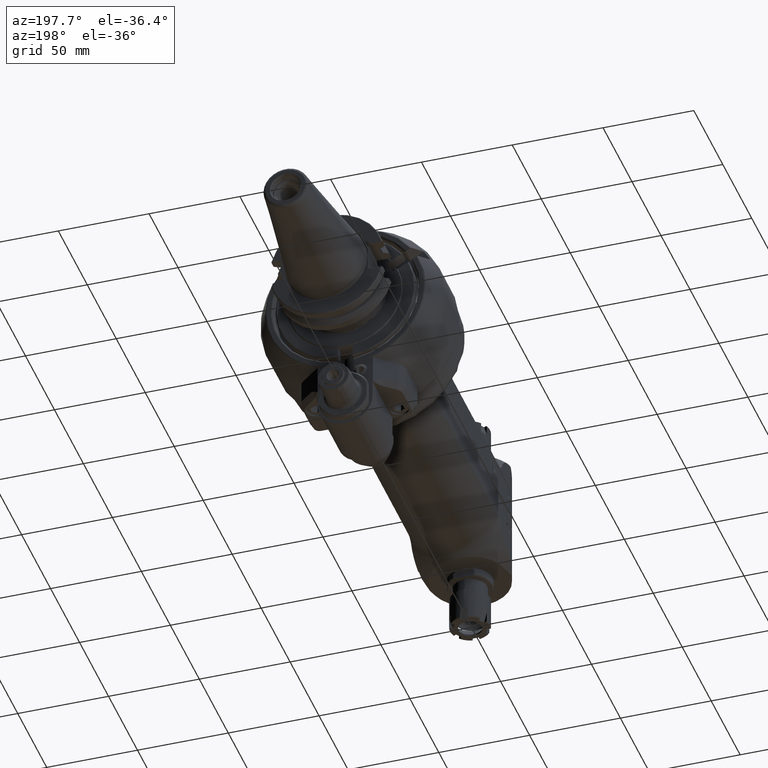
[diagram: clean part render]
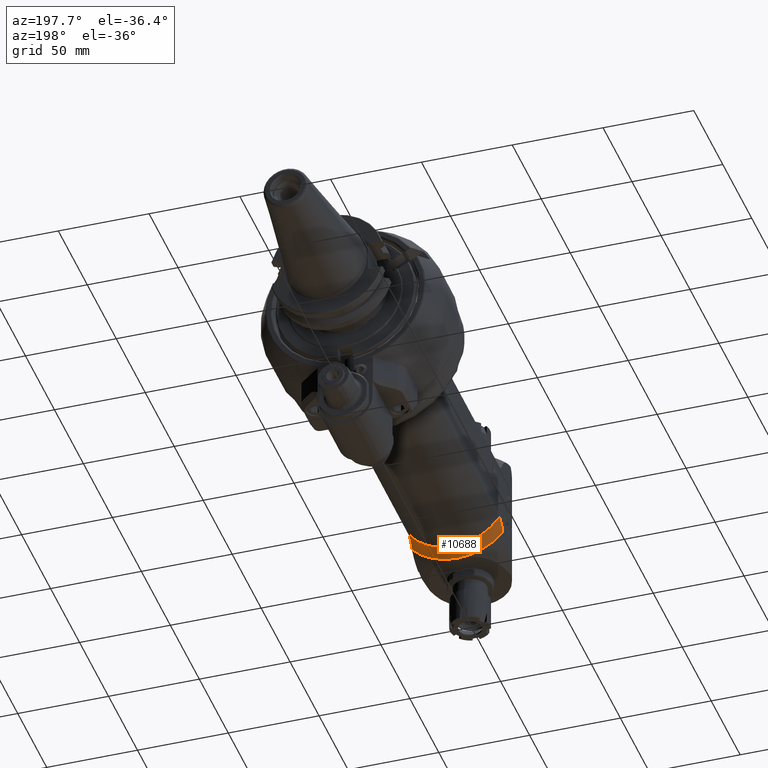
[diagram: same view with one face highlighted and labeled with its STEP entity id]
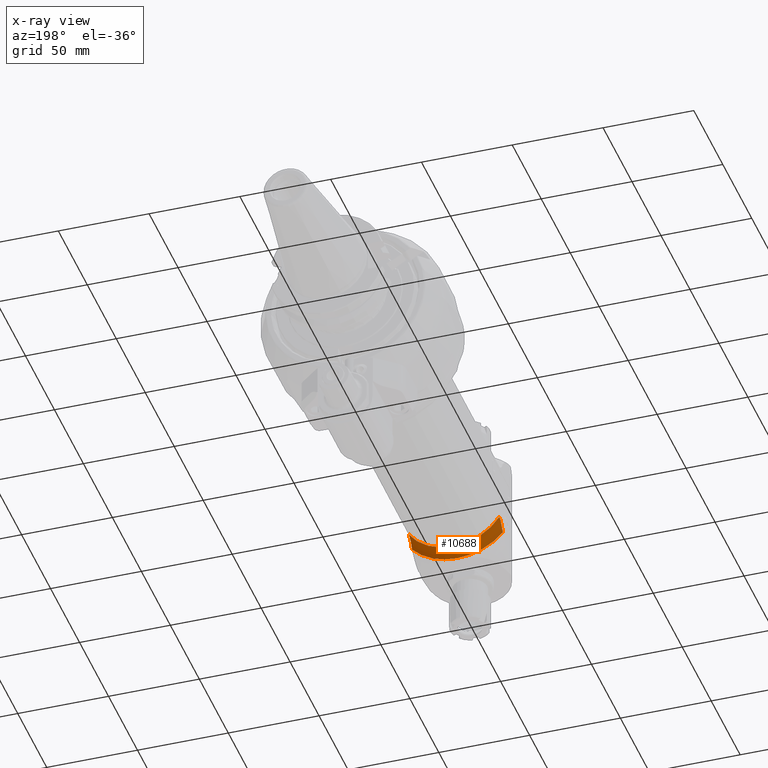
[diagram: x-ray of the same camera — body ghosted, the highlighted face saturated]
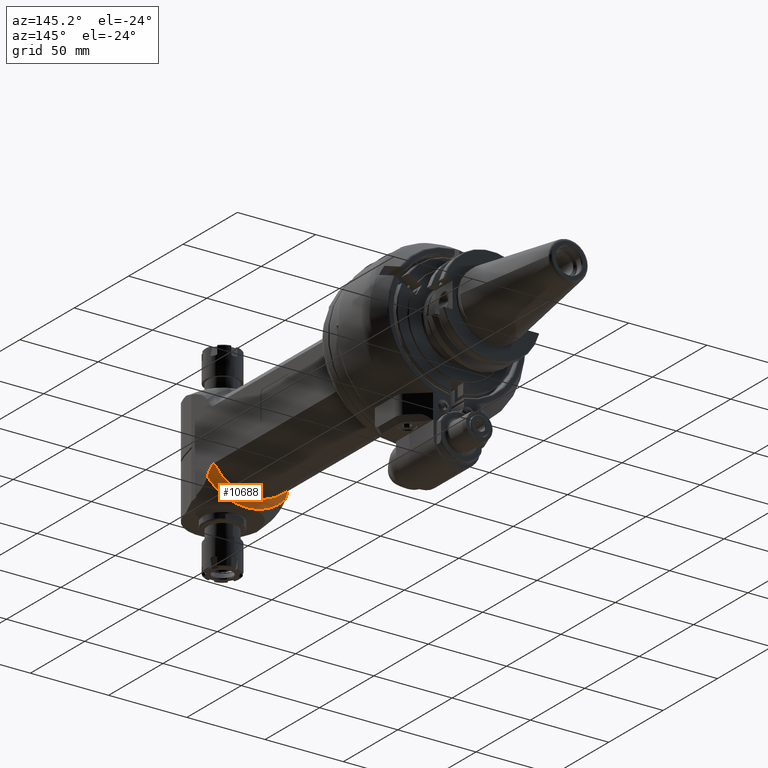
[diagram: same view with one face highlighted and labeled with its STEP entity id]
A machine part, auxiliary view. The second image highlights one B-rep face of the part: STEP entity #10688.
The next image is the same camera in x-ray: the body ghosted, the highlighted face saturated — about 0% of this face is hidden behind the body in this view.
A second angle (auxiliary view) of the same face is appended — the face is thin or edge-on in the first view.
In plain terms, the highlighted toroidal blend (fillet) surface has major radius 37 mm and minor (blend) radius 7 mm.
Its self-contained STEP definition (entity closure, byte-faithful):
#41=TOROIDAL_SURFACE('',#11460,37.,7.);
#229=B_SPLINE_CURVE_WITH_KNOTS('',3,(#16246,#16247,#16248,#16249,#16250,
#16251,#16252,#16253,#16254,#16255,#16256,#16257,#16258,#16259),
 .UNSPECIFIED.,.F.,.F.,(4,2,2,2,2,2,4),(-2.49776209313838,-2.39437636672067,
-2.27902658183863,-2.12689265368834,-1.97475872553806,-1.78223567166734,
-1.66971066944658),.UNSPECIFIED.);
#243=B_SPLINE_CURVE_WITH_KNOTS('',3,(#16603,#16604,#16605,#16606,#16607,
#16608,#16609,#16610,#16611,#16612,#16613,#16614,#16615,#16616),
 .UNSPECIFIED.,.F.,.F.,(4,2,2,2,2,2,4),(1.66978403740252,1.78230903962357,
1.97483209349429,2.12696602164458,2.27909994979486,2.39444973467691,2.49783546109461),
 .UNSPECIFIED.);
#910=FACE_OUTER_BOUND('',#1577,.T.);
#1577=EDGE_LOOP('',(#7388,#7389,#7390,#7391,#7392));
#3869=CIRCLE('',#11459,33.5);
#3870=CIRCLE('',#11461,30.);
#3871=CIRCLE('',#11462,33.5);
#4484=VERTEX_POINT('',#16241);
#4485=VERTEX_POINT('',#16245);
#4544=VERTEX_POINT('',#16595);
#4545=VERTEX_POINT('',#16601);
#4546=VERTEX_POINT('',#16602);
#5566=EDGE_CURVE('',#4485,#4484,#229,.T.);
#5658=EDGE_CURVE('',#4484,#4544,#3869,.T.);
#5659=EDGE_CURVE('',#4545,#4546,#243,.T.);
#5660=EDGE_CURVE('',#4546,#4485,#3870,.T.);
#5661=EDGE_CURVE('',#4544,#4545,#3871,.T.);
#7388=ORIENTED_EDGE('',*,*,#5659,.T.);
#7389=ORIENTED_EDGE('',*,*,#5660,.T.);
#7390=ORIENTED_EDGE('',*,*,#5566,.T.);
#7391=ORIENTED_EDGE('',*,*,#5658,.T.);
#7392=ORIENTED_EDGE('',*,*,#5661,.T.);
#10688=ADVANCED_FACE('',(#910),#41,.F.);
#11459=AXIS2_PLACEMENT_3D('',#16599,#12908,#12909);
#11460=AXIS2_PLACEMENT_3D('',#16600,#12910,#12911);
#11461=AXIS2_PLACEMENT_3D('',#16617,#12912,#12913);
#11462=AXIS2_PLACEMENT_3D('',#16618,#12914,#12915);
#12908=DIRECTION('center_axis',(-1.,0.,0.));
#12909=DIRECTION('ref_axis',(0.,0.819152044289016,0.573576436351011));
#12910=DIRECTION('center_axis',(1.,0.,0.));
#12911=DIRECTION('ref_axis',(0.,1.,-1.22464679914735E-16));
#12912=DIRECTION('center_axis',(1.,0.,0.));
#12913=DIRECTION('ref_axis',(0.,0.552770798392605,-0.833333333333308));
#12914=DIRECTION('center_axis',(-1.,0.,0.));
#12915=DIRECTION('ref_axis',(0.,1.,0.));
#16241=CARTESIAN_POINT('',(158.000000321384,22.2991037343394,24.9999998483833));
#16245=CARTESIAN_POINT('',(151.9378222182,16.58312395178,25.));
#16246=CARTESIAN_POINT('Ctrl Pts',(151.9378222182,16.583123951777,25.));
#16247=CARTESIAN_POINT('Ctrl Pts',(152.282441306259,16.583123951777,25.));
#16248=CARTESIAN_POINT('Ctrl Pts',(152.691735334975,16.6422520575151,25.));
#16249=CARTESIAN_POINT('Ctrl Pts',(153.39344890956,16.8402713953867,25.));
#16250=CARTESIAN_POINT('Ctrl Pts',(153.815216073051,17.0273586096957,25.));
#16251=CARTESIAN_POINT('Ctrl Pts',(154.584391953503,17.478292191667,25.));
#16252=CARTESIAN_POINT('Ctrl Pts',(155.020698383631,17.8190712330244,25.));
#16253=CARTESIAN_POINT('Ctrl Pts',(155.812224457852,18.5891145938405,25.));
#16254=CARTESIAN_POINT('Ctrl Pts',(156.168421551287,19.0173735566936,25.));
#16255=CARTESIAN_POINT('Ctrl Pts',(156.841829587104,19.9481759632981,25.));
#16256=CARTESIAN_POINT('Ctrl Pts',(157.203602538318,20.5518000895077,25.));
#16257=CARTESIAN_POINT('Ctrl Pts',(157.693594692207,21.5500745930292,25.));
#16258=CARTESIAN_POINT('Ctrl Pts',(157.857028091703,21.9270808406899,25.));
#16259=CARTESIAN_POINT('Ctrl Pts',(158.000000285685,22.2991037480588,25.));
#16595=CARTESIAN_POINT('',(158.0000000447,33.5,1.06581410364E-14));
#16599=CARTESIAN_POINT('Origin',(158.0000000447,0.,0.));
#16600=CARTESIAN_POINT('Origin',(151.9378222182,0.,0.));
#16601=CARTESIAN_POINT('',(158.000000321385,22.2991037343422,-24.9999998483826));
#16602=CARTESIAN_POINT('',(151.9378222182,16.58312395178,-25.));
#16603=CARTESIAN_POINT('Ctrl Pts',(158.000000285686,22.2991037480618,-25.));
#16604=CARTESIAN_POINT('Ctrl Pts',(157.857028091704,21.9270808406919,-25.));
#16605=CARTESIAN_POINT('Ctrl Pts',(157.693594692207,21.5500745930301,-25.));
#16606=CARTESIAN_POINT('Ctrl Pts',(157.203602538318,20.5518000895076,-25.));
#16607=CARTESIAN_POINT('Ctrl Pts',(156.841829587104,19.9481759632981,-25.));
#16608=CARTESIAN_POINT('Ctrl Pts',(156.168421551287,19.0173735566936,-25.));
#16609=CARTESIAN_POINT('Ctrl Pts',(155.812224457852,18.5891145938404,-25.));
#16610=CARTESIAN_POINT('Ctrl Pts',(155.020698383631,17.8190712330243,-25.));
#16611=CARTESIAN_POINT('Ctrl Pts',(154.584391953503,17.478292191667,-25.));
#16612=CARTESIAN_POINT('Ctrl Pts',(153.815216073051,17.0273586096957,-25.));
#16613=CARTESIAN_POINT('Ctrl Pts',(153.39344890956,16.8402713953867,-25.));
#16614=CARTESIAN_POINT('Ctrl Pts',(152.691735334975,16.6422520575151,-25.));
#16615=CARTESIAN_POINT('Ctrl Pts',(152.282441306259,16.583123951777,-25.));
#16616=CARTESIAN_POINT('Ctrl Pts',(151.9378222182,16.583123951777,-25.));
#16617=CARTESIAN_POINT('Origin',(151.9378222182,0.,0.));
#16618=CARTESIAN_POINT('Origin',(158.0000000447,0.,0.));